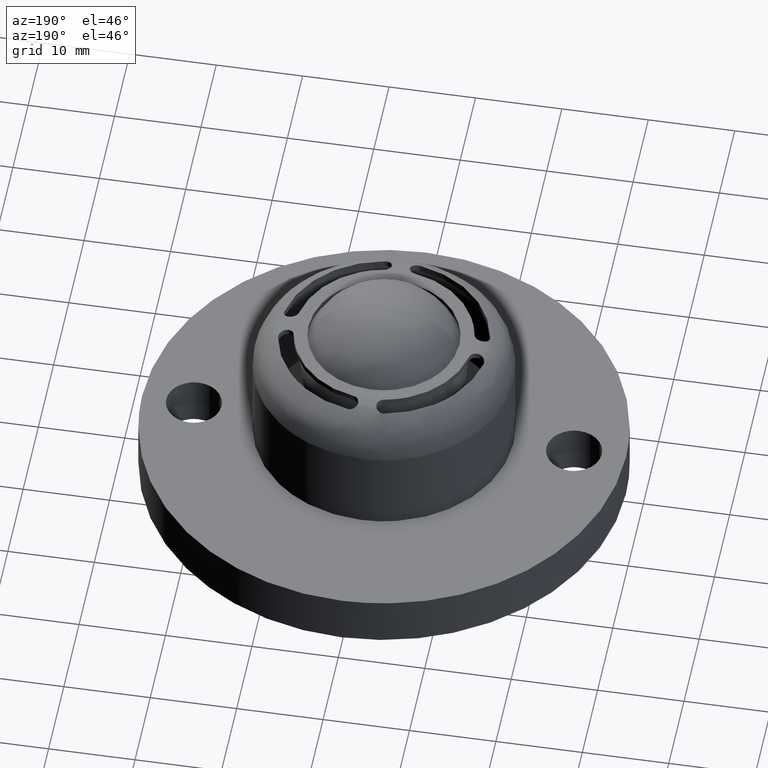
[diagram: clean part render]
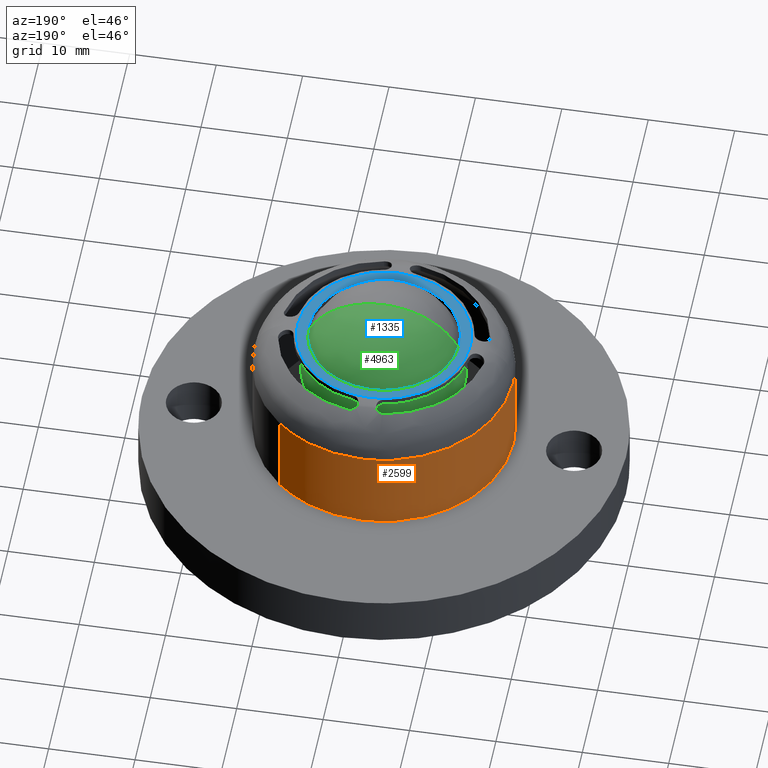
[diagram: same view with three faces highlighted in distinct colors, each labeled with its STEP entity id]
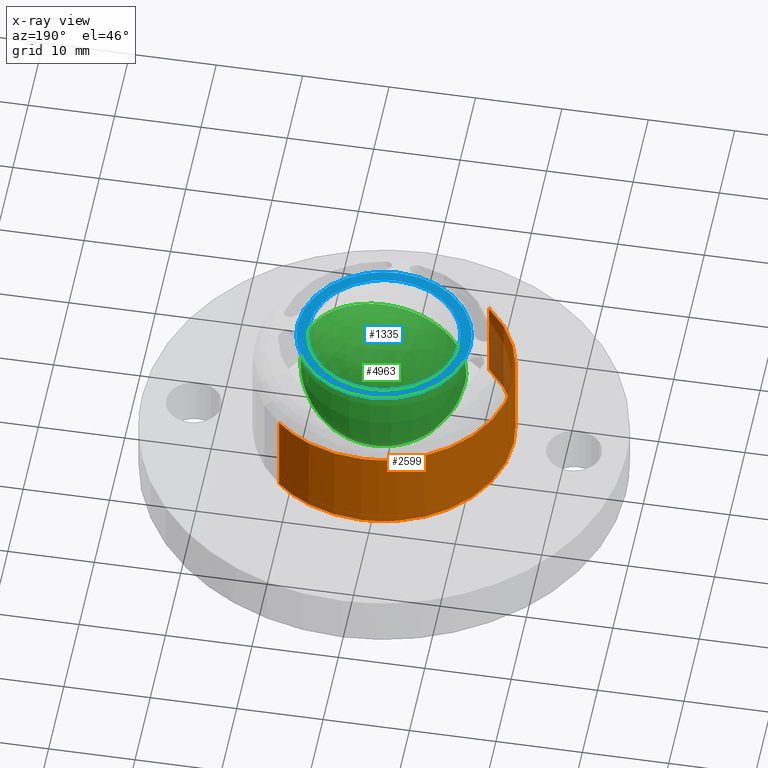
[diagram: x-ray of the same camera — body ghosted, the three highlighted faces saturated]
A machine part, auxiliary view with three faces highlighted in distinct colors.
The next image is the same camera in x-ray (body ghosted, the three faces saturated) — at least one of them is partly hidden behind the body in this view.
Their STEP definitions:

[orange] entity #2599 — the highlighted face is a freeform B-spline surface patch.
#2317=CARTESIAN_POINT('',(-14.998815773993600,-0.188481770099575,15.999996921778560));
#2318=VERTEX_POINT('',#2317);
#2319=CARTESIAN_POINT('',(-14.999999999999799,0.0,16.0));
#2320=VERTEX_POINT('',#2319);
#2321=CARTESIAN_POINT('',(-14.998815773993600,-0.188481770099575,15.999996921778560));
#2322=CARTESIAN_POINT('',(-14.999999999999799,0.0,16.0));
#2323=QUASI_UNIFORM_CURVE('',1,(#2321,#2322),.UNSPECIFIED.,.F.,.U.);
#2324=EDGE_CURVE('',#2318,#2320,#2323,.T.);
#2359=CARTESIAN_POINT('',(10.187783637850860,11.009498832748870,15.999997408451399));
#2360=VERTEX_POINT('',#2359);
#2373=CARTESIAN_POINT('',(-0.094233463851559,14.999703998888920,15.999998460888330));
#2374=VERTEX_POINT('',#2373);
#2375=CARTESIAN_POINT('',(-0.094233463851559,14.999703998888920,15.999998460888330));
#2376=CARTESIAN_POINT('',(0.699864969677158,15.004747372786881,15.999998379404820));
#2377=CARTESIAN_POINT('',(2.171130414334853,14.896875669947431,15.999998228511931));
#2378=CARTESIAN_POINT('',(4.213594382667351,14.439739371697710,15.999998019235020));
#2379=CARTESIAN_POINT('',(6.234635659980321,13.702968350765181,15.999997812336430));
#2380=CARTESIAN_POINT('',(8.258902426786287,12.605884709682689,15.999997605339921));
#2381=CARTESIAN_POINT('',(9.583382182355926,11.568864762329101,15.999997470105990));
#2382=CARTESIAN_POINT('',(10.187783637850860,11.009498832748870,15.999997408451399));
#2383=B_SPLINE_CURVE_WITH_KNOTS('',3,(#2375,#2376,#2377,#2378,#2379,#2380,#2381,#2382),.UNSPECIFIED.,.F.,.U.,(4,1,1,1,1,4),(9.996802E-009,2.382336193014259,4.411736493548567,6.264649568763537,8.823466874221586,11.294037026101620),.UNSPECIFIED.);
#2384=EDGE_CURVE('',#2374,#2360,#2383,.T.);
#2386=CARTESIAN_POINT('',(-14.999999999999799,0.0,16.0));
#2387=CARTESIAN_POINT('',(-15.000013628447370,0.611135319536306,15.999999999607409));
#2388=CARTESIAN_POINT('',(-14.921469157687300,1.894519709870296,15.999999990720820));
#2389=CARTESIAN_POINT('',(-14.535075830070500,3.909754212110554,15.999999949774811));
#2390=CARTESIAN_POINT('',(-13.753598399688970,6.168824332508891,15.999999868133020));
#2391=CARTESIAN_POINT('',(-12.597002783075670,8.265073293461459,15.999999748106481));
#2392=CARTESIAN_POINT('',(-11.272108196894040,9.950502741509181,15.999999611075831));
#2393=CARTESIAN_POINT('',(-9.865910389443261,11.357009051519460,15.999999465882849));
#2394=CARTESIAN_POINT('',(-8.357669221821931,12.513336689040781,15.999999310380760));
#2395=CARTESIAN_POINT('',(-6.654321029991822,13.480845965294341,15.999999134980960));
#2396=CARTESIAN_POINT('',(-4.765828163822140,14.280420521359790,15.999998940691791));
#2397=CARTESIAN_POINT('',(-2.568445851659575,14.850361017113331,15.999998714857890));
#2398=CARTESIAN_POINT('',(-0.888693496691829,14.994756011990541,15.999998542408120));
#2399=CARTESIAN_POINT('',(-0.094233463851559,14.999703998888920,15.999998460888330));
#2400=B_SPLINE_CURVE_WITH_KNOTS('',3,(#2386,#2387,#2388,#2389,#2390,#2391,#2392,#2393,#2394,#2395,#2396,#2397,#2398,#2399),.UNSPECIFIED.,.F.,.U.,(4,1,1,1,1,1,1,1,1,1,1,4),(0.000000043178083,1.833408529351758,3.850166332809369,6.141950545423217,8.983749833365627,11.000532099273100,12.558908646546870,14.942346713444341,16.684096458564650,18.425851041409349,21.084319302689110,23.467747338369790),.UNSPECIFIED.);
#2401=EDGE_CURVE('',#2320,#2374,#2400,.T.);
#2447=CARTESIAN_POINT('',(-10.187783637850860,-11.009498832748870,15.999997408451399));
#2448=VERTEX_POINT('',#2447);
#2449=CARTESIAN_POINT('',(-10.187783637850860,-11.009498832748870,15.999997408451399));
#2450=CARTESIAN_POINT('',(-10.909197198797290,-10.342098348890650,15.999997334859231));
#2451=CARTESIAN_POINT('',(-11.881722151606670,-9.246004908518385,15.999997235777411));
#2452=CARTESIAN_POINT('',(-13.012312419593300,-7.520412793391256,15.999997120882821));
#2453=CARTESIAN_POINT('',(-13.720228444108340,-6.134521321932817,15.999997049138470));
#2454=CARTESIAN_POINT('',(-14.376413621615381,-4.414628490757585,15.999996982917660));
#2455=CARTESIAN_POINT('',(-14.854120964170971,-2.469398110774760,15.999996935155419));
#2456=CARTESIAN_POINT('',(-14.989299463066050,-0.949277391225105,15.999996922264360));
#2457=CARTESIAN_POINT('',(-14.998815773993600,-0.188481770099575,15.999996921778560));
#2458=B_SPLINE_CURVE_WITH_KNOTS('',3,(#2449,#2450,#2451,#2452,#2453,#2454,#2455,#2456,#2457),.UNSPECIFIED.,.F.,.U.,(4,1,1,1,1,1,4),(0.000000011834292,2.948315832921987,4.374927556154805,6.181939605680046,7.608556549373238,9.891128763295036,12.173691903143160),.UNSPECIFIED.);
#2459=EDGE_CURVE('',#2448,#2318,#2458,.T.);
#2517=CARTESIAN_POINT('',(-10.187783622585901,-11.009498846875941,16.250000000000000));
#2518=CARTESIAN_POINT('',(-21.197282469461832,-0.821715224290038,16.250000000000004));
#2519=CARTESIAN_POINT('',(-11.009498846875941,10.187783622585901,16.250000000000000));
#2520=CARTESIAN_POINT('',(-0.821715224290038,21.197282469461832,16.250000000000004));
#2521=CARTESIAN_POINT('',(10.187783622585901,11.009498846875941,16.250000000000000));
#2522=CARTESIAN_POINT('',(-10.187783622585901,-11.009498846875941,5.743750000000093));
#2523=CARTESIAN_POINT('',(-21.197282469461832,-0.821715224290038,5.743750000000092));
#2524=CARTESIAN_POINT('',(-11.009498846875941,10.187783622585901,5.743750000000093));
#2525=CARTESIAN_POINT('',(-0.821715224290038,21.197282469461832,5.743750000000092));
#2526=CARTESIAN_POINT('',(10.187783622585901,11.009498846875941,5.743750000000093));
#2534=(BOUNDED_SURFACE()B_SPLINE_SURFACE(2,1,((#2517,#2522),(#2518,#2523),(#2519,#2524),(#2520,#2525),(#2521,#2526)),.UNSPECIFIED.,.F.,.F.,.U.)B_SPLINE_SURFACE_WITH_KNOTS((3,2,3),(2,2),(0.0,24.852813742385258,49.705627484770517),(0.0,10.506249999999900),.UNSPECIFIED.)GEOMETRIC_REPRESENTATION_ITEM()RATIONAL_B_SPLINE_SURFACE(((1.0,1.0),(0.707106781186548,0.707106781186548),(1.0,1.0),(0.707106781186548,0.707106781186548),(1.0,1.0)))REPRESENTATION_ITEM('')SURFACE());
#2535=ORIENTED_EDGE('',*,*,#2459,.T.);
#2536=ORIENTED_EDGE('',*,*,#2324,.T.);
#2537=ORIENTED_EDGE('',*,*,#2401,.T.);
#2538=ORIENTED_EDGE('',*,*,#2384,.T.);
#2539=CARTESIAN_POINT('',(10.187783686751921,11.009498962060940,6.000000000000091));
#2540=VERTEX_POINT('',#2539);
#2541=CARTESIAN_POINT('',(10.187783637850860,11.009498832748870,15.999997408451399));
#2542=CARTESIAN_POINT('',(10.187783686751921,11.009498962060940,6.000000000000091));
#2543=QUASI_UNIFORM_CURVE('',1,(#2541,#2542),.UNSPECIFIED.,.F.,.U.);
#2544=EDGE_CURVE('',#2360,#2540,#2543,.T.);
#2545=ORIENTED_EDGE('',*,*,#2544,.T.);
#2546=CARTESIAN_POINT('',(0.000000514032998,14.999999999999689,6.000000000000091));
#2547=VERTEX_POINT('',#2546);
#2548=CARTESIAN_POINT('',(0.000000514032998,14.999999999999689,6.000000000000091));
#2549=CARTESIAN_POINT('',(1.020829849442421,15.000151430749300,6.000000000000088));
#2550=CARTESIAN_POINT('',(2.508236001585557,14.847550083518041,6.000000000000088));
#2551=CARTESIAN_POINT('',(4.544695101197979,14.325707874048760,6.000000000000100));
#2552=CARTESIAN_POINT('',(6.295792286138192,13.669153063201820,6.000000000000108));
#2553=CARTESIAN_POINT('',(8.274136453500574,12.591615450227581,5.999999999999977));
#2554=CARTESIAN_POINT('',(9.567022351779572,11.584014525269440,6.000000000000200));
#2555=CARTESIAN_POINT('',(10.187783686751921,11.009498962060940,6.000000000000091));
#2556=B_SPLINE_CURVE_WITH_KNOTS('',3,(#2548,#2549,#2550,#2551,#2552,#2553,#2554,#2555),.UNSPECIFIED.,.F.,.U.,(4,1,1,1,1,4),(0.000000010244220,3.062446443788009,4.462425608236314,6.299887784745875,8.662347448704619,11.199802020077311),.UNSPECIFIED.);
#2557=EDGE_CURVE('',#2547,#2540,#2556,.T.);
#2558=ORIENTED_EDGE('',*,*,#2557,.F.);
#2559=CARTESIAN_POINT('',(-14.999999999999700,0.0,6.000000000000091));
#2560=VERTEX_POINT('',#2559);
#2561=CARTESIAN_POINT('',(-14.999999999999700,0.0,6.000000000000091));
#2562=CARTESIAN_POINT('',(-15.000096546897820,0.889716477495457,6.000000000000061));
#2563=CARTESIAN_POINT('',(-14.882250914167710,2.208895577811874,6.000000000000136));
#2564=CARTESIAN_POINT('',(-14.438202870833370,4.186382514948534,6.000000000000028));
#2565=CARTESIAN_POINT('',(-13.772032394529759,6.103873490408838,6.000000000000184));
#2566=CARTESIAN_POINT('',(-12.793637921509809,7.920883824401135,6.000000000000008));
#2567=CARTESIAN_POINT('',(-11.655325033743731,9.485472362275043,6.000000000000172));
#2568=CARTESIAN_POINT('',(-10.441851644169031,10.832712208490239,5.999999999999961));
#2569=CARTESIAN_POINT('',(-8.915437344814075,12.125074830185181,6.000000000000152));
#2570=CARTESIAN_POINT('',(-7.093751090324996,13.270838889359720,6.000000000000068));
#2571=CARTESIAN_POINT('',(-5.410942552329037,14.029157939509689,6.000000000000070));
#2572=CARTESIAN_POINT('',(-3.740462036835126,14.552699248653321,6.000000000000110));
#2573=CARTESIAN_POINT('',(-2.024839954780946,14.904923558304850,6.000000000000078));
#2574=CARTESIAN_POINT('',(-0.736309194944582,15.000042318793380,6.000000000000100));
#2575=CARTESIAN_POINT('',(0.000000514032998,14.999999999999689,6.000000000000091));
#2576=B_SPLINE_CURVE_WITH_KNOTS('',3,(#2561,#2562,#2563,#2564,#2565,#2566,#2567,#2568,#2569,#2570,#2571,#2572,#2573,#2574,#2575),.UNSPECIFIED.,.F.,.U.,(4,1,1,1,1,1,1,1,1,1,1,1,4),(0.000000042434699,2.669124016154338,3.957668689044034,6.074574935339655,8.743717676309601,10.124306067827129,11.873004087740471,14.173986027280151,16.106815966073761,18.315760848068251,19.696346942626239,21.353056327259210,23.561982153494270),.UNSPECIFIED.);
#2577=EDGE_CURVE('',#2560,#2547,#2576,.T.);
#2578=ORIENTED_EDGE('',*,*,#2577,.F.);
#2579=CARTESIAN_POINT('',(-10.187783686751819,-11.009498962060830,6.000000000000091));
#2580=VERTEX_POINT('',#2579);
#2581=CARTESIAN_POINT('',(-10.187783686751819,-11.009498962060830,6.000000000000091));
#2582=CARTESIAN_POINT('',(-10.825801151362841,-10.419188284128669,6.000000000000081));
#2583=CARTESIAN_POINT('',(-12.042274231639020,-9.079398514735132,6.000000000000108));
#2584=CARTESIAN_POINT('',(-13.358284105890579,-6.965970275996071,6.000000000000096));
#2585=CARTESIAN_POINT('',(-14.304143602043069,-4.703423229817150,6.000000000000077));
#2586=CARTESIAN_POINT('',(-14.867554821933609,-2.446666809692011,6.000000000000074));
#2587=CARTESIAN_POINT('',(-15.000055101059029,-0.804829673059378,6.000000000000135));
#2588=CARTESIAN_POINT('',(-14.999999999999700,0.0,6.000000000000091));
#2589=B_SPLINE_CURVE_WITH_KNOTS('',3,(#2581,#2582,#2583,#2584,#2585,#2586,#2587,#2588),.UNSPECIFIED.,.F.,.U.,(4,1,1,1,1,4),(0.000000012762793,2.607644634835461,5.408466301643465,7.436622403230514,9.947693816802710,12.362179700138819),.UNSPECIFIED.);
#2590=EDGE_CURVE('',#2580,#2560,#2589,.T.);
#2591=ORIENTED_EDGE('',*,*,#2590,.F.);
#2592=CARTESIAN_POINT('',(-10.187783637850860,-11.009498832748870,15.999997408451399));
#2593=CARTESIAN_POINT('',(-10.187783686751819,-11.009498962060830,6.000000000000091));
#2594=QUASI_UNIFORM_CURVE('',1,(#2592,#2593),.UNSPECIFIED.,.F.,.U.);
#2595=EDGE_CURVE('',#2448,#2580,#2594,.T.);
#2596=ORIENTED_EDGE('',*,*,#2595,.F.);
#2597=EDGE_LOOP('',(#2535,#2536,#2537,#2538,#2545,#2558,#2578,#2591,#2596));
#2598=FACE_OUTER_BOUND('',#2597,.T.);
#2599=ADVANCED_FACE('',(#2598),#2534,.T.);

[blue] entity #1335 — the highlighted face is a freeform B-spline surface patch.
#468=CARTESIAN_POINT('',(6.327618083634519,-6.004685373669587,21.0));
#469=VERTEX_POINT('',#468);
#475=CARTESIAN_POINT('',(8.723244809129101,0.0,21.0));
#476=VERTEX_POINT('',#475);
#477=CARTESIAN_POINT('',(8.723244809129101,0.0,21.0));
#478=CARTESIAN_POINT('',(8.723332572390362,-0.586404979604794,21.000000000000028));
#479=CARTESIAN_POINT('',(8.621977730987004,-1.586697987719995,20.999999999999979));
#480=CARTESIAN_POINT('',(8.277166769243088,-2.818872504536087,21.000000000000021));
#481=CARTESIAN_POINT('',(7.842368233473377,-3.872254753578321,21.0));
#482=CARTESIAN_POINT('',(7.244876099076167,-4.925453301302267,20.999999999999979));
#483=CARTESIAN_POINT('',(6.660065241605389,-5.654416673220995,21.000000000000060));
#484=CARTESIAN_POINT('',(6.327618083634519,-6.004685373669587,21.0));
#485=B_SPLINE_CURVE_WITH_KNOTS('',3,(#477,#478,#479,#480,#481,#482,#483,#484),.UNSPECIFIED.,.F.,.U.,(4,1,1,1,1,4),(4.893895E-009,1.759204887722996,3.000998700661407,3.828850269999971,5.174131045733117,6.622885219076257),.UNSPECIFIED.);
#486=EDGE_CURVE('',#476,#469,#485,.T.);
#488=CARTESIAN_POINT('',(0.000000677488244,8.723244809129076,21.0));
#489=VERTEX_POINT('',#488);
#490=CARTESIAN_POINT('',(0.000000677488244,8.723244809129076,21.0));
#491=CARTESIAN_POINT('',(0.677993327680909,8.723399677154822,21.0));
#492=CARTESIAN_POINT('',(1.855485320217444,8.585242979676366,21.000000000000011));
#493=CARTESIAN_POINT('',(3.249787261453395,8.124592676812970,21.000000000000011));
#494=CARTESIAN_POINT('',(4.309302412451532,7.607449376546779,20.999999999999989));
#495=CARTESIAN_POINT('',(5.152049641195379,7.066517747434650,21.000000000000011));
#496=CARTESIAN_POINT('',(6.031598426387102,6.335606036334618,20.999999999999979));
#497=CARTESIAN_POINT('',(6.932664777246647,5.365711702309681,21.000000000000021));
#498=CARTESIAN_POINT('',(7.675681681773593,4.223631990809971,20.999999999999709));
#499=CARTESIAN_POINT('',(8.284155452857238,2.850877385782032,21.000000000001780));
#500=CARTESIAN_POINT('',(8.640560487426843,1.498707302535643,20.999999999994760));
#501=CARTESIAN_POINT('',(8.723264826576122,0.463876126279452,21.000000000007319));
#502=CARTESIAN_POINT('',(8.723244809129101,0.0,21.0));
#503=B_SPLINE_CURVE_WITH_KNOTS('',3,(#490,#491,#492,#493,#494,#495,#496,#497,#498,#499,#500,#501,#502),.UNSPECIFIED.,.F.,.U.,(4,1,1,1,1,1,1,1,1,1,4),(0.000114911370678,2.034065035391663,3.532769473584480,4.389176361845705,5.566737302561650,6.530181053071281,7.814751181571909,9.527562128002327,10.598072060405510,12.310886082825590,13.702519446926420),.UNSPECIFIED.);
#504=EDGE_CURVE('',#489,#476,#503,.T.);
#506=CARTESIAN_POINT('',(-6.327618083634496,6.004685373669567,21.0));
#507=VERTEX_POINT('',#506);
#508=CARTESIAN_POINT('',(-6.327618083634496,6.004685373669567,21.0));
#509=CARTESIAN_POINT('',(-5.959618270213363,6.392547860276998,21.000000000000011));
#510=CARTESIAN_POINT('',(-5.179844200784878,7.075870020467312,20.999999999999989));
#511=CARTESIAN_POINT('',(-4.038576107575969,7.763258624045899,21.0));
#512=CARTESIAN_POINT('',(-2.953051055601981,8.229595625163382,20.999999999999979));
#513=CARTESIAN_POINT('',(-1.677673289793570,8.608143465085682,21.000000000000210));
#514=CARTESIAN_POINT('',(-0.645286582443802,8.723366766376644,20.999999999999851));
#515=CARTESIAN_POINT('',(0.000000677488244,8.723244809129076,21.0));
#516=B_SPLINE_CURVE_WITH_KNOTS('',3,(#508,#509,#510,#511,#512,#513,#514,#515),.UNSPECIFIED.,.F.,.U.,(4,1,1,1,1,4),(0.000000013996203,1.603973144661284,3.097334097284104,3.982272836184685,5.143776597404555,7.079606919482530),.UNSPECIFIED.);
#517=EDGE_CURVE('',#507,#489,#516,.T.);
#547=CARTESIAN_POINT('',(-8.723244809129101,0.0,21.0));
#548=VERTEX_POINT('',#547);
#549=CARTESIAN_POINT('',(-8.723244809129101,0.0,21.0));
#550=CARTESIAN_POINT('',(-8.723333335380271,0.586405526445085,21.000000000000011));
#551=CARTESIAN_POINT('',(-8.621960136813584,1.586689007657569,20.999999999999979));
#552=CARTESIAN_POINT('',(-8.174766522205951,3.185251661157009,21.000000000000039));
#553=CARTESIAN_POINT('',(-7.455238342538174,4.649527068365380,20.999999999999972));
#554=CARTESIAN_POINT('',(-6.707556698060090,5.604381527280507,21.000000000000011));
#555=CARTESIAN_POINT('',(-6.327618083634496,6.004685373669567,21.0));
#556=B_SPLINE_CURVE_WITH_KNOTS('',3,(#549,#550,#551,#552,#553,#554,#555),.UNSPECIFIED.,.F.,.U.,(4,1,1,1,4),(4.894256E-009,1.759204887723136,3.000998700661433,4.967163915533622,6.622885219076245),.UNSPECIFIED.);
#557=EDGE_CURVE('',#548,#507,#556,.T.);
#559=CARTESIAN_POINT('',(-0.000000677488121,-8.723244809129074,21.0));
#560=VERTEX_POINT('',#559);
#561=CARTESIAN_POINT('',(-0.000000677488121,-8.723244809129074,21.0));
#562=CARTESIAN_POINT('',(-0.677997593391225,-8.723408748233753,20.999999999999989));
#563=CARTESIAN_POINT('',(-1.784111252685164,-8.593593179911899,21.000000000000039));
#564=CARTESIAN_POINT('',(-3.114369999449512,-8.172114868307807,20.999999999999979));
#565=CARTESIAN_POINT('',(-4.348726841347537,-7.606849268163112,20.999999999999879));
#566=CARTESIAN_POINT('',(-5.423340599801701,-6.888811543555472,21.000000000000050));
#567=CARTESIAN_POINT('',(-6.407173310033868,-5.951959022299822,20.999999999999929));
#568=CARTESIAN_POINT('',(-7.042197697601449,-5.178172637674443,21.000000000000199));
#569=CARTESIAN_POINT('',(-7.743685522432476,-4.100135583757065,20.999999999998970));
#570=CARTESIAN_POINT('',(-8.296514519899178,-2.852915367895867,21.000000000002981));
#571=CARTESIAN_POINT('',(-8.651906289429798,-1.355949118957813,20.999999999993591));
#572=CARTESIAN_POINT('',(-8.723275416893648,-0.463879590355535,21.000000000014278));
#573=CARTESIAN_POINT('',(-8.723244809129101,0.0,21.0));
#574=B_SPLINE_CURVE_WITH_KNOTS('',3,(#561,#562,#563,#564,#565,#566,#567,#568,#569,#570,#571,#572,#573),.UNSPECIFIED.,.F.,.U.,(4,1,1,1,1,1,1,1,1,1,4),(0.000114911370609,2.034065035391667,3.318668188879252,4.175074413055592,6.101987931380429,7.172458378674438,8.242952056606633,9.099358296362770,11.026276011511410,12.310886082825590,13.702519446926480),.UNSPECIFIED.);
#575=EDGE_CURVE('',#560,#548,#574,.T.);
#577=CARTESIAN_POINT('',(6.327618083634519,-6.004685373669587,21.0));
#578=CARTESIAN_POINT('',(6.048431361582376,-6.298907246129039,20.999999999999989));
#579=CARTESIAN_POINT('',(5.421670539238378,-6.873291077378390,21.000000000000011));
#580=CARTESIAN_POINT('',(4.381143408174281,-7.579071328345361,21.000000000000021));
#581=CARTESIAN_POINT('',(3.199696410004737,-8.150032788639377,20.999999999999950));
#582=CARTESIAN_POINT('',(1.751416441136674,-8.599914814410603,21.000000000000011));
#583=CARTESIAN_POINT('',(0.645286159092319,-8.723370802553383,21.000000000000011));
#584=CARTESIAN_POINT('',(-0.000000677488121,-8.723244809129074,21.0));
#585=B_SPLINE_CURVE_WITH_KNOTS('',3,(#577,#578,#579,#580,#581,#582,#583,#584),.UNSPECIFIED.,.F.,.U.,(4,1,1,1,1,4),(0.000000013997815,1.216802676635811,2.544239843362114,3.761037250918299,5.143776597404981,7.079606919482406),.UNSPECIFIED.);
#586=EDGE_CURVE('',#469,#560,#585,.T.);
#1237=CARTESIAN_POINT('',(10.998999961235899,-10.998783032706809,21.0));
#1238=CARTESIAN_POINT('',(-10.999000497677700,-10.998783032706809,21.0));
#1239=CARTESIAN_POINT('',(10.998999961235899,10.998783569138030,21.0));
#1240=CARTESIAN_POINT('',(-10.999000497677700,10.998783569138030,21.0));
#1241=B_SPLINE_SURFACE_WITH_KNOTS('',1,1,((#1237,#1239),(#1238,#1240)),.UNSPECIFIED.,.F.,.F.,.U.,(2,2),(2,2),(0.0,21.998000458913602),(0.0,21.997566601844831),.UNSPECIFIED.);
#1242=CARTESIAN_POINT('',(-9.999210443112442,-0.125660399112170,21.0));
#1243=VERTEX_POINT('',#1242);
#1244=CARTESIAN_POINT('',(-9.999999999999799,0.0,21.0));
#1245=VERTEX_POINT('',#1244);
#1246=CARTESIAN_POINT('',(-9.999210443112442,-0.125660399112170,21.0));
#1247=CARTESIAN_POINT('',(-9.999999999999799,0.0,21.0));
#1248=QUASI_UNIFORM_CURVE('',1,(#1246,#1247),.UNSPECIFIED.,.F.,.U.);
#1249=EDGE_CURVE('',#1243,#1245,#1248,.T.);
#1250=ORIENTED_EDGE('',*,*,#1249,.F.);
#1251=CARTESIAN_POINT('',(0.062805054336982,-9.999802774315775,21.0));
#1252=VERTEX_POINT('',#1251);
#1253=CARTESIAN_POINT('',(0.062805054336982,-9.999802774315775,21.0));
#1254=CARTESIAN_POINT('',(-0.752047007442675,-10.005116804715930,20.999999999999979));
#1255=CARTESIAN_POINT('',(-1.975128644608196,-9.862347549020981,21.000000000000060));
#1256=CARTESIAN_POINT('',(-3.671815095482398,-9.338768757251605,20.999999999999979));
#1257=CARTESIAN_POINT('',(-5.056959151645598,-8.681790683000816,21.000000000000028));
#1258=CARTESIAN_POINT('',(-6.413469667036530,-7.731730922212230,20.999999999999940));
#1259=CARTESIAN_POINT('',(-7.667861891215875,-6.500802788237396,21.000000000000071));
#1260=CARTESIAN_POINT('',(-8.616082490678140,-5.165796620274470,20.999999999999709));
#1261=CARTESIAN_POINT('',(-9.392856564817793,-3.568297450361603,21.000000000000249));
#1262=CARTESIAN_POINT('',(-9.869902152616294,-1.937224893602176,20.999999999999829));
#1263=CARTESIAN_POINT('',(-9.992074530973957,-0.696003032924692,21.000000000000039));
#1264=CARTESIAN_POINT('',(-9.999210443112442,-0.125660399112170,21.0));
#1265=B_SPLINE_CURVE_WITH_KNOTS('',3,(#1253,#1254,#1255,#1256,#1257,#1258,#1259,#1260,#1261,#1262,#1263,#1264),.UNSPECIFIED.,.F.,.U.,(4,1,1,1,1,1,1,1,1,4),(0.000000047509420,2.444539861733519,3.666826353504057,5.316910095750648,7.028099615612669,8.617032192051825,10.572676083062669,11.917189043699720,13.933957265446860,15.645129376220471),.UNSPECIFIED.);
#1266=EDGE_CURVE('',#1252,#1243,#1265,.T.);
#1267=ORIENTED_EDGE('',*,*,#1266,.F.);
#1268=CARTESIAN_POINT('',(9.999999999999799,0.0,21.0));
#1269=VERTEX_POINT('',#1268);
#1270=CARTESIAN_POINT('',(9.999999999999799,0.0,21.0));
#1271=CARTESIAN_POINT('',(10.000177121018620,-0.774121264127850,20.999999999999989));
#1272=CARTESIAN_POINT('',(9.845428429866040,-2.098170913045506,21.000000000000050));
#1273=CARTESIAN_POINT('',(9.225339413401098,-4.002992117244947,20.999999999999940));
#1274=CARTESIAN_POINT('',(8.403672521260038,-5.513930806852385,21.000000000000039));
#1275=CARTESIAN_POINT('',(7.246087342481330,-6.968289412547263,20.999999999999879));
#1276=CARTESIAN_POINT('',(6.015703370704582,-8.050301213281982,21.000000000000401));
#1277=CARTESIAN_POINT('',(4.466690021176247,-9.000404336474364,20.999999999999091));
#1278=CARTESIAN_POINT('',(3.098838551482141,-9.550151776351116,21.000000000000579));
#1279=CARTESIAN_POINT('',(1.549358564501455,-9.911791116438977,20.999999999999670));
#1280=CARTESIAN_POINT('',(0.633190160482149,-9.996274887633627,21.000000000000181));
#1281=CARTESIAN_POINT('',(0.062805054336982,-9.999802774315775,21.0));
#1282=B_SPLINE_CURVE_WITH_KNOTS('',3,(#1270,#1271,#1272,#1273,#1274,#1275,#1276,#1277,#1278,#1279,#1280,#1281),.UNSPECIFIED.,.F.,.U.,(4,1,1,1,1,1,1,1,1,4),(0.000000047521921,2.322319799756039,3.972409917017876,5.989187849213552,7.455931183150865,9.533768978048798,10.878289453035620,12.895061498258491,13.934004264907371,15.645182147339259),.UNSPECIFIED.);
#1283=EDGE_CURVE('',#1269,#1252,#1282,.T.);
#1284=ORIENTED_EDGE('',*,*,#1283,.F.);
#1285=CARTESIAN_POINT('',(9.999210443112442,0.125660399112170,21.0));
#1286=VERTEX_POINT('',#1285);
#1287=CARTESIAN_POINT('',(9.999210443112442,0.125660399112170,21.0));
#1288=CARTESIAN_POINT('',(9.999999999999799,0.0,21.0));
#1289=QUASI_UNIFORM_CURVE('',1,(#1287,#1288),.UNSPECIFIED.,.F.,.U.);
#1290=EDGE_CURVE('',#1286,#1269,#1289,.T.);
#1291=ORIENTED_EDGE('',*,*,#1290,.F.);
#1292=CARTESIAN_POINT('',(-0.062805054336928,9.999802774315775,21.0));
#1293=VERTEX_POINT('',#1292);
#1294=CARTESIAN_POINT('',(-0.062805054336928,9.999802774315775,21.0));
#1295=CARTESIAN_POINT('',(0.629806963349023,10.004252886287240,20.999999999999961));
#1296=CARTESIAN_POINT('',(1.771278919854524,9.892315214349710,21.000000000000121));
#1297=CARTESIAN_POINT('',(3.188552181185085,9.501952512480495,20.999999999999890));
#1298=CARTESIAN_POINT('',(4.436229774839567,8.996632264488211,21.000000000000011));
#1299=CARTESIAN_POINT('',(5.607762934712640,8.326950859446892,20.999999999999730));
#1300=CARTESIAN_POINT('',(6.710148888101974,7.449773958194217,21.000000000000430));
#1301=CARTESIAN_POINT('',(7.750836394432616,6.383985933370518,20.999999999999648));
#1302=CARTESIAN_POINT('',(8.699071024379899,5.048988467113601,21.000000000000568));
#1303=CARTESIAN_POINT('',(9.442716311005894,3.432554606707621,20.999999999999890));
#1304=CARTESIAN_POINT('',(9.883840274528074,1.794762403630235,21.000000000000039));
#1305=CARTESIAN_POINT('',(9.992094410814476,0.696009172150372,20.999999999999989));
#1306=CARTESIAN_POINT('',(9.999210443112442,0.125660399112170,21.0));
#1307=B_SPLINE_CURVE_WITH_KNOTS('',3,(#1294,#1295,#1296,#1297,#1298,#1299,#1300,#1301,#1302,#1303,#1304,#1305,#1306),.UNSPECIFIED.,.F.,.U.,(4,1,1,1,1,1,1,1,1,1,4),(0.000000047511852,2.077858580716434,3.422371663974495,4.400196677949490,6.111394751267431,7.455906034150514,8.617032192052127,10.572676083062669,12.344987796704091,13.933957265446830,15.645129376220421),.UNSPECIFIED.);
#1308=EDGE_CURVE('',#1293,#1286,#1307,.T.);
#1309=ORIENTED_EDGE('',*,*,#1308,.F.);
#1310=CARTESIAN_POINT('',(-9.999999999999799,0.0,21.0));
#1311=CARTESIAN_POINT('',(-10.000059593843901,0.611140461205891,21.000000000000011));
#1312=CARTESIAN_POINT('',(-9.883877585627772,1.874146123250957,21.000000000000050));
#1313=CARTESIAN_POINT('',(-9.389874958117455,3.585043039600576,20.999999999999790));
#1314=CARTESIAN_POINT('',(-8.724946733723572,4.942867726618696,21.000000000000369));
#1315=CARTESIAN_POINT('',(-7.837009467746154,6.287688907651600,20.999999999999989));
#1316=CARTESIAN_POINT('',(-6.636952106256864,7.579406860461829,21.000000000000039));
#1317=CARTESIAN_POINT('',(-5.061249399602851,8.683607221557553,20.999999999999961));
#1318=CARTESIAN_POINT('',(-3.524929026700751,9.401487860943755,21.000000000000188));
#1319=CARTESIAN_POINT('',(-1.895420739866000,9.872333526292350,20.999999999999218));
#1320=CARTESIAN_POINT('',(-0.714676496351461,9.995792397264017,21.000000000001450));
#1321=CARTESIAN_POINT('',(-0.062805054336928,9.999802774315775,21.0));
#1322=B_SPLINE_CURVE_WITH_KNOTS('',3,(#1310,#1311,#1312,#1313,#1314,#1315,#1316,#1317,#1318,#1319,#1320,#1321),.UNSPECIFIED.,.F.,.U.,(4,1,1,1,1,1,1,1,1,4),(0.000000047519274,1.833415710478345,3.789067152391013,5.316928029815127,6.355866624304888,8.617061257217539,10.572711744697409,12.100573092016649,13.689549950903990,15.645182147339320),.UNSPECIFIED.);
#1323=EDGE_CURVE('',#1245,#1293,#1322,.T.);
#1324=ORIENTED_EDGE('',*,*,#1323,.F.);
#1325=EDGE_LOOP('',(#1250,#1267,#1284,#1291,#1309,#1324));
#1326=FACE_OUTER_BOUND('',#1325,.T.);
#1327=ORIENTED_EDGE('',*,*,#504,.T.);
#1328=ORIENTED_EDGE('',*,*,#486,.T.);
#1329=ORIENTED_EDGE('',*,*,#586,.T.);
#1330=ORIENTED_EDGE('',*,*,#575,.T.);
#1331=ORIENTED_EDGE('',*,*,#557,.T.);
#1332=ORIENTED_EDGE('',*,*,#517,.T.);
#1333=EDGE_LOOP('',(#1327,#1328,#1329,#1330,#1331,#1332));
#1334=FACE_BOUND('',#1333,.T.);
#1335=ADVANCED_FACE('',(#1326,#1334),#1241,.F.);

[green] entity #4963 — the highlighted face is a freeform B-spline surface patch.
#4839=CARTESIAN_POINT('',(-9.524999999999874,0.0,16.474999351647799));
#4840=VERTEX_POINT('',#4839);
#4841=CARTESIAN_POINT('',(1.065814E-013,0.0,6.949999999999999));
#4842=VERTEX_POINT('',#4841);
#4843=CARTESIAN_POINT('',(-9.524999999999874,0.0,16.474999351647799));
#4844=CARTESIAN_POINT('',(-9.525059442100412,0.0,15.910033345450820));
#4845=CARTESIAN_POINT('',(-9.445016663393243,0.0,15.013906932019440));
#4846=CARTESIAN_POINT('',(-9.151358211905382,0.0,13.760307781494060));
#4847=CARTESIAN_POINT('',(-8.710845721163159,0.0,12.528999540560131));
#4848=CARTESIAN_POINT('',(-7.983265858049935,0.0,11.187597075060420));
#4849=CARTESIAN_POINT('',(-7.042418862457285,0.0,10.012143701623209));
#4850=CARTESIAN_POINT('',(-5.944662344527943,0.0,8.986059364501225));
#4851=CARTESIAN_POINT('',(-4.815409372110459,0.0,8.211306804738703));
#4852=CARTESIAN_POINT('',(-3.317526202102793,0.0,7.497186981973879));
#4853=CARTESIAN_POINT('',(-1.753349175403995,0.0,7.053972220678271));
#4854=CARTESIAN_POINT('',(-0.545480409778117,0.0,6.949971444630465));
#4855=CARTESIAN_POINT('',(1.065814E-013,0.0,6.949999999999999));
#4856=B_SPLINE_CURVE_WITH_KNOTS('',3,(#4843,#4844,#4845,#4846,#4847,#4848,#4849,#4850,#4851,#4852,#4853,#4854,#4855),.UNSPECIFIED.,.F.,.U.,(4,1,1,1,1,1,1,1,1,1,4),(0.000000047657526,1.694884962941854,2.688455697959173,3.857355296625755,5.610711294759456,7.247167755796890,8.357591228361237,10.110942162784699,11.338283375079261,13.325408036328250,14.961858118077210),.UNSPECIFIED.);
#4857=EDGE_CURVE('',#4840,#4842,#4856,.T.);
#4859=CARTESIAN_POINT('',(9.525000000000084,0.0,16.474999351647789));
#4860=VERTEX_POINT('',#4859);
#4861=CARTESIAN_POINT('',(9.525000000000084,0.0,16.474999351647789));
#4862=CARTESIAN_POINT('',(9.525187268127581,0.0,15.715205270149839));
#4863=CARTESIAN_POINT('',(9.351568294058600,0.0,14.273654657187530));
#4864=CARTESIAN_POINT('',(8.745771189964115,0.0,12.596666833901910));
#4865=CARTESIAN_POINT('',(7.998423913591184,0.0,11.248826099310010));
#4866=CARTESIAN_POINT('',(7.250093342413789,0.0,10.246222576435960));
#4867=CARTESIAN_POINT('',(6.352965183881049,0.0,9.349151280750979));
#4868=CARTESIAN_POINT('',(5.449823208225398,0.0,8.635362959839201));
#4869=CARTESIAN_POINT('',(4.434076619410011,0.0,8.013766575075003));
#4870=CARTESIAN_POINT('',(3.095272055358497,0.0,7.420239875138966));
#4871=CARTESIAN_POINT('',(1.597489531971522,0.0,7.035294556923484));
#4872=CARTESIAN_POINT('',(0.487030481950518,0.0,6.949984029867777));
#4873=CARTESIAN_POINT('',(1.065814E-013,0.0,6.949999999999999));
#4874=B_SPLINE_CURVE_WITH_KNOTS('',3,(#4861,#4862,#4863,#4864,#4865,#4866,#4867,#4868,#4869,#4870,#4871,#4872,#4873),.UNSPECIFIED.,.F.,.U.,(4,1,1,1,1,1,1,1,1,1,4),(0.000000047660452,2.279333251347449,4.324913882037800,5.318474909973263,6.896506883291579,8.065351450649711,9.117379169587141,10.344718873095440,11.630509958336811,13.500758193624700,14.961858118077210),.UNSPECIFIED.);
#4875=EDGE_CURVE('',#4860,#4842,#4874,.T.);
#4877=CARTESIAN_POINT('',(1.065814E-013,0.0,26.0));
#4878=VERTEX_POINT('',#4877);
#4879=CARTESIAN_POINT('',(1.065814E-013,0.0,26.0));
#4880=CARTESIAN_POINT('',(0.759797809474835,0.0,26.000199882886228));
#4881=CARTESIAN_POINT('',(1.987038837309398,0.0,25.852316955445811));
#4882=CARTESIAN_POINT('',(3.455306587986827,0.0,25.377196213237280));
#4883=CARTESIAN_POINT('',(4.640094622751206,0.0,24.825718442010231));
#4884=CARTESIAN_POINT('',(5.645585416987983,0.0,24.184675639542419));
#4885=CARTESIAN_POINT('',(6.655506272186719,0.0,23.324228248888900));
#4886=CARTESIAN_POINT('',(7.537239465378675,0.0,22.357398218102318));
#4887=CARTESIAN_POINT('',(8.253854500405637,0.0,21.284911316719331));
#4888=CARTESIAN_POINT('',(8.847944861942406,0.0,20.077036861560678));
#4889=CARTESIAN_POINT('',(9.366316018273844,0.0,18.539967452099511));
#4890=CARTESIAN_POINT('',(9.525182868712932,0.0,17.254273834516990));
#4891=CARTESIAN_POINT('',(9.525000000000084,0.0,16.474999351647789));
#4892=B_SPLINE_CURVE_WITH_KNOTS('',3,(#4879,#4880,#4881,#4882,#4883,#4884,#4885,#4886,#4887,#4888,#4889,#4890,#4891),.UNSPECIFIED.,.F.,.U.,(4,1,1,1,1,1,1,1,1,1,4),(0.000000047610378,2.279333362648790,3.682020369050957,4.617143703839213,6.195146342860420,7.247168110112456,8.591363455697051,10.110942656908801,11.104504373590469,12.624079854803620,14.961858848922351),.UNSPECIFIED.);
#4893=EDGE_CURVE('',#4878,#4860,#4892,.T.);
#4895=CARTESIAN_POINT('',(1.065814E-013,0.0,26.0));
#4896=CARTESIAN_POINT('',(-0.642896201409722,0.0,26.000099363855298));
#4897=CARTESIAN_POINT('',(-1.694853759752355,0.0,25.893055075461309));
#4898=CARTESIAN_POINT('',(-3.182490619352266,0.0,25.486284456852811));
#4899=CARTESIAN_POINT('',(-4.545565478638347,0.0,24.897068554484250));
#4900=CARTESIAN_POINT('',(-5.824691044946529,0.0,24.064897817965921));
#4901=CARTESIAN_POINT('',(-7.051292405050364,0.0,22.946291172763519));
#4902=CARTESIAN_POINT('',(-8.135282710000404,0.0,21.557453717802670));
#4903=CARTESIAN_POINT('',(-8.991467545170796,0.0,19.816767680026160));
#4904=CARTESIAN_POINT('',(-9.439696268619851,0.0,18.072485272054230));
#4905=CARTESIAN_POINT('',(-9.525016625864950,0.0,16.962030139647450));
#4906=CARTESIAN_POINT('',(-9.524999999999874,0.0,16.474999351647799));
#4907=B_SPLINE_CURVE_WITH_KNOTS('',3,(#4895,#4896,#4897,#4898,#4899,#4900,#4901,#4902,#4903,#4904,#4905,#4906),.UNSPECIFIED.,.F.,.U.,(4,1,1,1,1,1,1,1,1,4),(0.000000047635552,1.928663280986186,3.156013451300241,4.617143703856227,6.370499001820862,7.714692143105189,9.584929603076706,11.630510526545059,13.500758853165220,14.961858848922340),.UNSPECIFIED.);
#4908=EDGE_CURVE('',#4878,#4840,#4907,.T.);
#4913=CARTESIAN_POINT('',(-6.243690174262825,-3.571875000000000,22.718690174262932));
#4914=CARTESIAN_POINT('',(-5.654662799332363,-2.336320754716982,24.014550399109964));
#4915=CARTESIAN_POINT('',(-2.378548637814344,-0.453571428571429,25.989194551257803));
#4916=CARTESIAN_POINT('',(2.378548637814557,-0.453571428571429,25.989194551257803));
#4917=CARTESIAN_POINT('',(5.654662799332574,-2.336320754716982,24.014550399109964));
#4918=CARTESIAN_POINT('',(6.243690174263038,-3.571875000000000,22.718690174262932));
#4919=CARTESIAN_POINT('',(-7.539550399109849,-2.336320754716982,22.129662799332472));
#4920=CARTESIAN_POINT('',(-7.135645913443243,-0.453571428571429,23.610645913443353));
#4921=CARTESIAN_POINT('',(-3.222549767361407,2.765322580645160,26.142649302084543));
#4922=CARTESIAN_POINT('',(3.222549767361620,2.765322580645160,26.142649302084543));
#4923=CARTESIAN_POINT('',(7.135645913443457,-0.453571428571429,23.610645913443353));
#4924=CARTESIAN_POINT('',(7.539550399110065,-2.336320754716982,22.129662799332472));
#4925=CARTESIAN_POINT('',(-9.514194551257695,-0.453571428571429,18.853548637814452));
#4926=CARTESIAN_POINT('',(-9.667649302084431,2.765322580645160,19.697549767361515));
#4927=CARTESIAN_POINT('',(-4.994952139410239,9.524999999999997,21.469952139410349));
#4928=CARTESIAN_POINT('',(4.994952139410453,9.524999999999997,21.469952139410349));
#4929=CARTESIAN_POINT('',(9.667649302084644,2.765322580645160,19.697549767361515));
#4930=CARTESIAN_POINT('',(9.514194551257905,-0.453571428571429,18.853548637814452));
#4931=CARTESIAN_POINT('',(-9.514194551257695,-0.453571428571429,14.096451362185551));
#4932=CARTESIAN_POINT('',(-9.667649302084431,2.765322580645160,13.252450232638489));
#4933=CARTESIAN_POINT('',(-4.994952139410239,9.524999999999997,11.480047860589661));
#4934=CARTESIAN_POINT('',(4.994952139410453,9.524999999999997,11.480047860589661));
#4935=CARTESIAN_POINT('',(9.667649302084644,2.765322580645160,13.252450232638489));
#4936=CARTESIAN_POINT('',(9.514194551257905,-0.453571428571429,14.096451362185551));
#4937=CARTESIAN_POINT('',(-7.539550399109849,-2.336320754716982,10.820337200667536));
#4938=CARTESIAN_POINT('',(-7.135645913443243,-0.453571428571429,9.339354086556652));
#4939=CARTESIAN_POINT('',(-3.222549767361407,2.765322580645160,6.807350697915465));
#4940=CARTESIAN_POINT('',(3.222549767361620,2.765322580645160,6.807350697915465));
#4941=CARTESIAN_POINT('',(7.135645913443457,-0.453571428571429,9.339354086556652));
#4942=CARTESIAN_POINT('',(7.539550399110065,-2.336320754716982,10.820337200667536));
#4943=CARTESIAN_POINT('',(-6.243690174262825,-3.571875000000000,10.231309825737071));
#4944=CARTESIAN_POINT('',(-5.654662799332363,-2.336320754716982,8.935449600890051));
#4945=CARTESIAN_POINT('',(-2.378548637814344,-0.453571428571429,6.960805448742200));
#4946=CARTESIAN_POINT('',(2.378548637814557,-0.453571428571429,6.960805448742200));
#4947=CARTESIAN_POINT('',(5.654662799332574,-2.336320754716982,8.935449600890051));
#4948=CARTESIAN_POINT('',(6.243690174263038,-3.571875000000000,10.231309825737071));
#4956=(BOUNDED_SURFACE()B_SPLINE_SURFACE(2,2,((#4913,#4919,#4925,#4931,#4937,#4943),(#4914,#4920,#4926,#4932,#4938,#4944),(#4915,#4921,#4927,#4933,#4939,#4945),(#4916,#4922,#4928,#4934,#4940,#4946),(#4917,#4923,#4929,#4935,#4941,#4947),(#4918,#4924,#4930,#4936,#4942,#4948)),.UNSPECIFIED.,.F.,.F.,.U.)B_SPLINE_SURFACE_WITH_KNOTS((3,1,1,1,3),(3,1,1,1,3),(0.0,8.782333431930280,17.564666863860559,26.347000295790838,35.129333727721118),(0.0,8.782333431930288,17.564666863860580,26.347000295790860,35.129333727721153),.UNSPECIFIED.)GEOMETRIC_REPRESENTATION_ITEM()RATIONAL_B_SPLINE_SURFACE(((3.200000000000000,2.650000000000000,2.100000000000000,2.100000000000000,2.650000000000000,3.200000000000000),(2.650000000000000,2.100000000000000,1.550000000000000,1.550000000000000,2.100000000000000,2.650000000000000),(2.100000000000000,1.550000000000000,1.0,1.0,1.550000000000000,2.100000000000000),(2.100000000000000,1.550000000000000,1.0,1.0,1.550000000000000,2.100000000000000),(2.650000000000000,2.100000000000000,1.550000000000000,1.550000000000000,2.100000000000000,2.650000000000000),(3.200000000000000,2.650000000000000,2.100000000000000,2.100000000000000,2.650000000000000,3.200000000000000)))REPRESENTATION_ITEM('')SURFACE());
#4957=ORIENTED_EDGE('',*,*,#4875,.T.);
#4958=ORIENTED_EDGE('',*,*,#4857,.F.);
#4959=ORIENTED_EDGE('',*,*,#4908,.F.);
#4960=ORIENTED_EDGE('',*,*,#4893,.T.);
#4961=EDGE_LOOP('',(#4957,#4958,#4959,#4960));
#4962=FACE_OUTER_BOUND('',#4961,.T.);
#4963=ADVANCED_FACE('',(#4962),#4956,.T.);